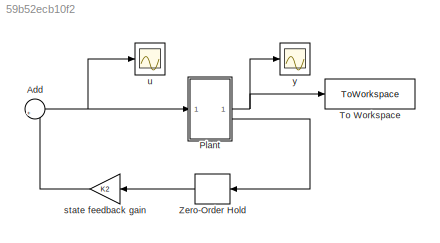
MODEL slx_59b52ecb10f2
KIND model
CONFIG AbsTol = auto
CONFIG EnableMultiTasking = on
CONFIG FixedStep = auto
CONFIG MaxStep = 1e-3
CONFIG MinStep = auto
CONFIG RelTol = 1e-3
CONFIG SampleTimeConstraint = Unconstrained
CONFIG SolverName = ode45
CONFIG StartTime = 0.0
CONFIG StopTime = tfinal
BLOCK [Sum] Add
  Inputs = |+-
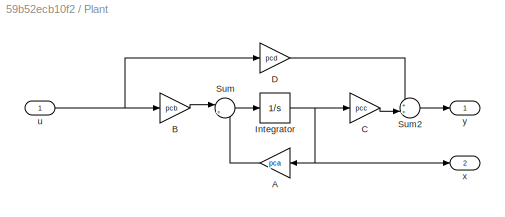
BLOCK [SubSystem] Plant
BLOCK [Gain] Plant/A
  Gain = pca
  Multiplication = Matrix(K*u) (u vector)
BLOCK [Gain] Plant/B
  Gain = pcb
  Multiplication = Matrix(K*u) (u vector)
BLOCK [Gain] Plant/C
  Gain = pcc
  Multiplication = Matrix(K*u) (u vector)
BLOCK [Gain] Plant/D
  Gain = pcd
  Multiplication = Matrix(K*u) (u vector)
BLOCK [Integrator] Plant/Integrator
  InitialCondition = x0
BLOCK [Sum] Plant/Sum
  Inputs = |++
BLOCK [Sum] Plant/Sum2
  Inputs = ++|
BLOCK [Inport] Plant/u
BLOCK [Outport] Plant/x
  Port = 2
BLOCK [Outport] Plant/y
BLOCK [ToWorkspace] To Workspace
  MaxDataPoints = inf
  SampleTime = 1e-2
  SaveFormat = Structure With Time
  VariableName = y
BLOCK [ZeroOrderHold] Zero-Order Hold
  SampleTime = h
BLOCK [Gain] state feedback gain
  Gain = K2
  Multiplication = Matrix(K*u) (u vector)
BLOCK [Scope] u
  Floating = off
  NumInputPorts = 1
  ScopeSpecificationString = Simulink.scopes.TimeScopeBlockCfg('CurrentConfiguration', extmgr.ConfigurationSet(extmgr.Configuration('Core','General UI',true),extmgr.Configuration('Core','Source UI',true),extmgr.Configuration('Sources','WiredSimulink',true,'DataLoggingVariableName','ScopeData1','DataLoggingSaveFormat','StructureWithTime','DataLoggingLimitDataPoints',true,'DataLoggingDecimation','1','DataLoggingDecimateData',tr...<+1908ch>
BLOCK [Scope] y
  Floating = off
  NumInputPorts = 1
  ScopeSpecificationString = Simulink.scopes.TimeScopeBlockCfg('CurrentConfiguration', extmgr.ConfigurationSet(extmgr.Configuration('Core','General UI',true),extmgr.Configuration('Core','Source UI',true),extmgr.Configuration('Sources','WiredSimulink',true,'DataLoggingVariableName','y','DataLoggingSaveFormat','StructureWithTime','SampleTime','0.01','DataLoggingLimitDataPoints',true,'DataLoggingDecimation','1','DataLoggingDecim...<+1881ch>
NET Add:1 -> Plant:1, u:1
LINE Plant/A:1 -> Plant/Sum:2
LINE Plant/B:1 -> Plant/Sum:1
LINE Plant/C:1 -> Plant/Sum2:2
LINE Plant/D:1 -> Plant/Sum2:1
NET Plant/Integrator:1 -> Plant/A:1, Plant/C:1, Plant/x:1
LINE Plant/Sum2:1 -> Plant/y:1
LINE Plant/Sum:1 -> Plant/Integrator:1
NET Plant/u:1 -> Plant/B:1, Plant/D:1
NET Plant:1 -> To Workspace:1, y:1
LINE Plant:2 -> Zero-Order Hold:1
LINE Zero-Order Hold:1 -> state feedback gain:1
LINE state feedback gain:1 -> Add:2
note: NET lines group one-source signal fan-out (src -> all destinations, sorted); 1:1 wires keep LINE
